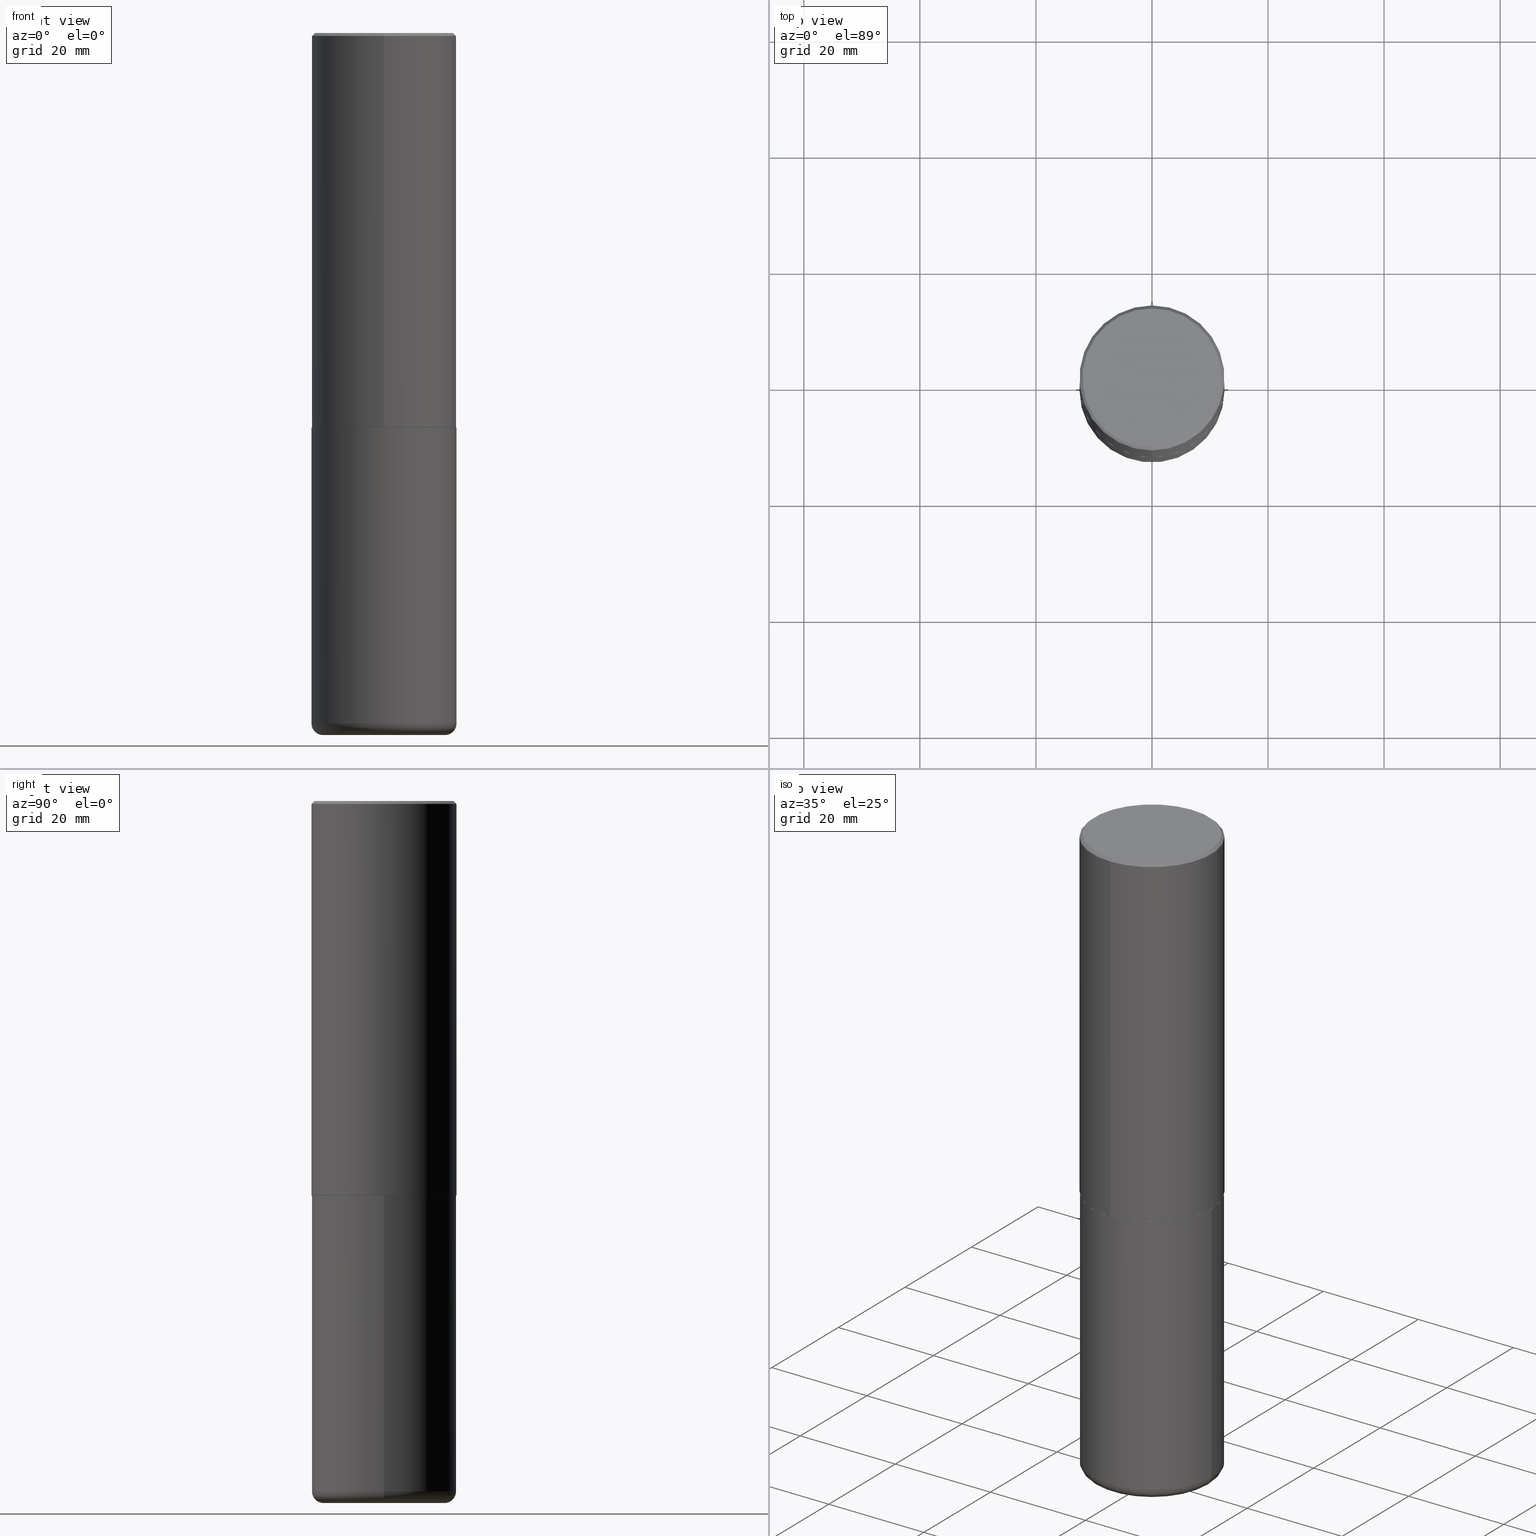
[diagram: canonical four-view strip — front | top / right | iso, engineering-drawing reading convention]
A machine part, canonical four-view strip (front | top / right | iso — engineering-drawing reading convention). The complete STEP part file that produces these views, byte-faithful:
ISO-10303-21;
HEADER;
FILE_DESCRIPTION (( 'STEP AP203' ),
    '1' );
FILE_NAME ('47147.STEP',
    '2024-03-05T23:48:38',
    ( '' ),
    ( '' ),
    'SwSTEP 2.0',
    'SolidWorks 2023',
    '' );
FILE_SCHEMA (( 'CONFIG_CONTROL_DESIGN' ));
ENDSEC;

DATA;
#1 = DIRECTION ( 'NONE',  ( 1.000000000000000000, -6.982962677686263555E-15, 4.883557194083111219E-29 ) ) ;
#2 = ORIENTED_EDGE ( 'NONE', *, *, #55, .T. ) ;
#3 = ORIENTED_EDGE ( 'NONE', *, *, #375, .F. ) ;
#4 = VECTOR ( 'NONE', #367, 39.37007874015748854 ) ;
#5 = CIRCLE ( 'NONE', #245, 0.4921499999999999209 ) ;
#6 = ADVANCED_FACE ( 'NONE', ( #133 ), #112, .F. ) ;
#7 = CARTESIAN_POINT ( 'NONE',  ( -5.508856381705404921E-45, 7.854569916190676353E-31, 2.251160947276086573E-16 ) ) ;
#8 = EDGE_CURVE ( 'NONE', #267, #324, #221, .T. ) ;
#9 = VERTEX_POINT ( 'NONE', #141 ) ;
#10 = APPROVAL_STATUS ( 'not_yet_approved' ) ;
#11 = ORIENTED_EDGE ( 'NONE', *, *, #8, .T. ) ;
#12 = ORIENTED_EDGE ( 'NONE', *, *, #219, .F. ) ;
#13 = EDGE_CURVE ( 'NONE', #9, #322, #332, .T. ) ;
#14 = VECTOR ( 'NONE', #186, 39.37007874015748143 ) ;
#15 = ORIENTED_EDGE ( 'NONE', *, *, #211, .F. ) ;
#16 = ADVANCED_FACE ( 'NONE', ( #176 ), #51, .T. ) ;
#17 = LOCAL_TIME ( 18, 48, 38.00000000000000000, #287 ) ;
#18 = DIRECTION ( 'NONE',  ( 1.000000000000000000, -6.982962677686265922E-15, 0.000000000000000000 ) ) ;
#19 = LINE ( 'NONE', #244, #4 ) ;
#20 = EDGE_CURVE ( 'NONE', #324, #267, #77, .T. ) ;
#21 = EDGE_CURVE ( 'NONE', #326, #320, #118, .T. ) ;
#22 = CARTESIAN_POINT ( 'NONE',  ( 4.894235917135264524E-31, -6.978239317535049922E-17, -0.02000000000000010797 ) ) ;
#23 = VECTOR ( 'NONE', #249, 39.37007874015748143 ) ;
#24 = AXIS2_PLACEMENT_3D ( 'NONE', #128, #163, #1 ) ;
#25 = DIRECTION ( 'NONE',  ( -2.447117958567619178E-29, 3.489119658767506053E-15, 1.000000000000000000 ) ) ;
#26 = DIRECTION ( 'NONE',  ( -2.447117958567619178E-29, 3.489119658767506053E-15, 1.000000000000000000 ) ) ;
#27 = DIRECTION ( 'NONE',  ( 2.447117958567619178E-29, -3.489119658767506053E-15, -1.000000000000000000 ) ) ;
#28 = VERTEX_POINT ( 'NONE', #212 ) ;
#29 = AXIS2_PLACEMENT_3D ( 'NONE', #124, #98, #253 ) ;
#30 = CARTESIAN_POINT ( 'NONE',  ( 6.548977080718662055E-29, -9.337582030793598206E-15, -2.676199999999999690 ) ) ;
#31 = DIRECTION ( 'NONE',  ( -6.982962677686266711E-15, -1.000000000000000000, 3.491481338843145583E-15 ) ) ;
#32 = PERSON ( 'UNSPECIFIED', 'UNSPECIFIED', 'UNSPECIFIED', ('UNSPECIFIED'), ('UNSPECIFIED'), ('UNSPECIFIED') ) ;
#33 = EDGE_CURVE ( 'NONE', #38, #322, #199, .T. ) ;
#34 = CARTESIAN_POINT ( 'NONE',  ( -3.429682119145543892E-15, -0.4911500000000093014, -2.677199999999997360 ) ) ;
#35 =( LENGTH_UNIT ( ) NAMED_UNIT ( * ) SI_UNIT ( $, .METRE. ) );
#36 = CC_DESIGN_SECURITY_CLASSIFICATION ( #250, ( #340 ) ) ;
#37 = MECHANICAL_CONTEXT ( 'NONE', #382, 'mechanical' ) ;
#38 = VERTEX_POINT ( 'NONE', #400 ) ;
#39 = EDGE_LOOP ( 'NONE', ( #12, #105, #198, #230 ) ) ;
#40 = DIRECTION ( 'NONE',  ( 1.000000000000000000, 0.000000000000000000, 0.000000000000000000 ) ) ;
#41 = ORIENTED_EDGE ( 'NONE', *, *, #20, .T. ) ;
#42 = PERSON_AND_ORGANIZATION_ROLE ( 'creator' ) ;
#43 = ORIENTED_EDGE ( 'NONE', *, *, #196, .T. ) ;
#44 = LOCAL_TIME ( 18, 48, 38.00000000000000000, #137 ) ;
#45 = VERTEX_POINT ( 'NONE', #140 ) ;
#46 = DATE_TIME_ROLE ( 'creation_date' ) ;
#47 = ORIENTED_EDGE ( 'NONE', *, *, #399, .F. ) ;
#48 = ORIENTED_EDGE ( 'NONE', *, *, #285, .T. ) ;
#49 = ORIENTED_EDGE ( 'NONE', *, *, #344, .T. ) ;
#50 = FACE_OUTER_BOUND ( 'NONE', #302, .T. ) ;
#51 = CONICAL_SURFACE ( 'NONE', #366, 0.4921499999999999209, 0.7853981633974466137 ) ;
#52 = CARTESIAN_POINT ( 'NONE',  ( -3.436665081823232273E-15, -0.4921500000000095798, -2.676199999999997914 ) ) ;
#53 = CC_DESIGN_PERSON_AND_ORGANIZATION_ASSIGNMENT ( #301, #208, ( #340 ) ) ;
#54 = LINE ( 'NONE', #119, #314 ) ;
#55 = EDGE_CURVE ( 'NONE', #28, #38, #19, .T. ) ;
#56 = DIRECTION ( 'NONE',  ( -6.982962677686265922E-15, -1.000000000000000000, 3.337287582609300506E-15 ) ) ;
#57 = VECTOR ( 'NONE', #25, 39.37007874015748143 ) ;
#58 = CARTESIAN_POINT ( 'NONE',  ( 1.164972429890475522E-28, -1.663271880198097847E-14, -4.763799999999999812 ) ) ;
#59 = CALENDAR_DATE ( 2024, 5, 3 ) ;
#60 = EDGE_CURVE ( 'NONE', #173, #322, #270, .T. ) ;
#61 = CARTESIAN_POINT ( 'NONE',  ( 6.551424198677229006E-29, -9.341071150452363547E-15, -2.677199999999999580 ) ) ;
#62 = DIRECTION ( 'NONE',  ( -1.000000000000000000, 7.105427357600995548E-15, 0.000000000000000000 ) ) ;
#63 = AXIS2_PLACEMENT_3D ( 'NONE', #58, #363, #125 ) ;
#64 = AXIS2_PLACEMENT_3D ( 'NONE', #7, #81, #317 ) ;
#65 = LINE ( 'NONE', #412, #92 ) ;
#66 = APPROVAL ( #108, 'UNSPECIFIED' ) ;
#67 = CARTESIAN_POINT ( 'NONE',  ( -0.4921500000000000874, -1.286100314657068829E-14, -4.685099999999999376 ) ) ;
#68 = DIRECTION ( 'NONE',  ( -2.445468806185136597E-29, 3.491481338843145583E-15, 1.000000000000000000 ) ) ;
#69 = SECURITY_CLASSIFICATION_LEVEL ( 'unclassified' ) ;
#70 = AXIS2_PLACEMENT_3D ( 'NONE', #309, #368, #209 ) ;
#71 = ORIENTED_EDGE ( 'NONE', *, *, #233, .F. ) ;
#72 = PRODUCT_DEFINITION ( 'UNKNOWN', '', #340, #129 ) ;
#73 = ORIENTED_EDGE ( 'NONE', *, *, #20, .F. ) ;
#74 = DATE_AND_TIME ( #353, #192 ) ;
#75 = ORIENTED_EDGE ( 'NONE', *, *, #211, .T. ) ;
#76 = ORIENTED_EDGE ( 'NONE', *, *, #196, .F. ) ;
#77 = CIRCLE ( 'NONE', #182, 0.4921499999999999764 ) ;
#78 = EDGE_LOOP ( 'NONE', ( #41, #201, #266, #251 ) ) ;
#79 = CIRCLE ( 'NONE', #153, 0.4721499999999996255 ) ;
#80 = CC_DESIGN_PERSON_AND_ORGANIZATION_ASSIGNMENT ( #136, #142, ( #250 ) ) ;
#81 = DIRECTION ( 'NONE',  ( -2.447117958567619178E-29, 3.489119658767506053E-15, 1.000000000000000000 ) ) ;
#82 = ORIENTED_EDGE ( 'NONE', *, *, #392, .F. ) ;
#83 = ORIENTED_EDGE ( 'NONE', *, *, #399, .T. ) ;
#84 = DIRECTION ( 'NONE',  ( -2.447117958567619178E-29, 3.489119658767506053E-15, 1.000000000000000000 ) ) ;
#85 = PERSON_AND_ORGANIZATION_ROLE ( 'design_supplier' ) ;
#86 = DIRECTION ( 'NONE',  ( -2.445468806185136597E-29, 3.491481338843145583E-15, 1.000000000000000000 ) ) ;
#87 = AXIS2_PLACEMENT_3D ( 'NONE', #167, #238, #203 ) ;
#88 = PLANE ( 'NONE',  #70 ) ;
#89 = CYLINDRICAL_SURFACE ( 'NONE', #191, 0.4921500000000000874 ) ;
#90 = PERSON_AND_ORGANIZATION ( #32, #319 ) ;
#91 = DIRECTION ( 'NONE',  ( -2.445468806185136597E-29, 3.491481338843145583E-15, 1.000000000000000000 ) ) ;
#92 = VECTOR ( 'NONE', #99, 39.37007874015748143 ) ;
#93 = LINE ( 'NONE', #312, #214 ) ;
#94 = SHAPE_DEFINITION_REPRESENTATION ( #202, #178 ) ;
#95 = PLANE ( 'NONE',  #183 ) ;
#96 = ORIENTED_EDGE ( 'NONE', *, *, #13, .T. ) ;
#97 = APPROVAL_DATE_TIME ( #158, #355 ) ;
#98 = DIRECTION ( 'NONE',  ( -2.447117958567619178E-29, 3.489119658767506053E-15, 1.000000000000000000 ) ) ;
#99 = DIRECTION ( 'NONE',  ( -2.447117958567619178E-29, 3.489119658767506053E-15, 1.000000000000000000 ) ) ;
#100 = FACE_OUTER_BOUND ( 'NONE', #39, .T. ) ;
#101 = DIRECTION ( 'NONE',  ( -6.982962677686265922E-15, -1.000000000000000000, 3.337287582609300506E-15 ) ) ;
#102 = ORIENTED_EDGE ( 'NONE', *, *, #392, .T. ) ;
#103 = TOROIDAL_SURFACE ( 'NONE', #333, 0.4134499999999999287, 0.07870000000000024198 ) ;
#104 = CC_DESIGN_APPROVAL ( #355, ( #340 ) ) ;
#105 = ORIENTED_EDGE ( 'NONE', *, *, #21, .T. ) ;
#106 = APPLICATION_PROTOCOL_DEFINITION ( 'international standard', 'config_control_design', 1994, #123 ) ;
#107 = ORIENTED_EDGE ( 'NONE', *, *, #285, .F. ) ;
#108 = APPROVAL_STATUS ( 'not_yet_approved' ) ;
#109 = EDGE_LOOP ( 'NONE', ( #331, #43, #193, #107 ) ) ;
#110 = APPROVAL_ROLE ( '' ) ;
#111 = AXIS2_PLACEMENT_3D ( 'NONE', #147, #84, #179 ) ;
#112 = PLANE ( 'NONE',  #87 ) ;
#113 = AXIS2_PLACEMENT_3D ( 'NONE', #316, #31, #157 ) ;
#114 = DIRECTION ( 'NONE',  ( 1.000000000000000000, -6.982962677686265922E-15, 4.876176775795935793E-29 ) ) ;
#115 = ADVANCED_FACE ( 'NONE', ( #116 ), #358, .T. ) ;
#116 = FACE_OUTER_BOUND ( 'NONE', #174, .T. ) ;
#117 = DIRECTION ( 'NONE',  ( -6.982962677686265922E-15, -1.000000000000000000, 3.337287582609300506E-15 ) ) ;
#118 = CIRCLE ( 'NONE', #325, 0.4134499999999999287 ) ;
#119 = CARTESIAN_POINT ( 'NONE',  ( 0.4921499999999999764, -3.436665081823295777E-15, 2.399810400207969603E-29 ) ) ;
#120 = CALENDAR_DATE ( 2024, 5, 3 ) ;
#121 = CARTESIAN_POINT ( 'NONE',  ( 6.551424198677227885E-29, -9.341071150452363547E-15, -2.677199999999999136 ) ) ;
#122 = DIRECTION ( 'NONE',  ( 7.105427357601001859E-15, 1.000000000000000000, -3.491481338843145583E-15 ) ) ;
#123 = APPLICATION_CONTEXT ( 'configuration controlled 3d designs of mechanical parts and assemblies' ) ;
#124 = CARTESIAN_POINT ( 'NONE',  ( 6.548977080718662055E-29, -9.337582030793598206E-15, -2.676199999999999690 ) ) ;
#125 = DIRECTION ( 'NONE',  ( 1.000000000000000000, -6.982962677686261977E-15, 0.000000000000000000 ) ) ;
#126 = CARTESIAN_POINT ( 'NONE',  ( 1.145726590385798145E-28, -1.635793922061402197E-14, -4.685099999999999376 ) ) ;
#127 = DIRECTION ( 'NONE',  ( -1.000000000000000000, 6.982962677686265922E-15, -4.876176775795935793E-29 ) ) ;
#128 = CARTESIAN_POINT ( 'NONE',  ( 1.145726590385798145E-28, -1.635793922061402197E-14, -4.685099999999999376 ) ) ;
#129 = DESIGN_CONTEXT ( 'detailed design', #123, 'design' ) ;
#130 = DIRECTION ( 'NONE',  ( -2.447117958567619178E-29, 3.489119658767506053E-15, 1.000000000000000000 ) ) ;
#131 = EDGE_LOOP ( 'NONE', ( #261, #76 ) ) ;
#132 = AXIS2_PLACEMENT_3D ( 'NONE', #275, #240, #207 ) ;
#133 = FACE_OUTER_BOUND ( 'NONE', #169, .T. ) ;
#134 = ADVANCED_FACE ( 'NONE', ( #336 ), #88, .T. ) ;
#135 = ORIENTED_EDGE ( 'NONE', *, *, #33, .T. ) ;
#136 = PERSON_AND_ORGANIZATION ( #32, #319 ) ;
#137 = COORDINATED_UNIVERSAL_TIME_OFFSET ( 5, 0, .BEHIND. ) ;
#138 = ORIENTED_EDGE ( 'NONE', *, *, #21, .F. ) ;
#139 = CONICAL_SURFACE ( 'NONE', #168, 0.4921499999999999209, 0.7853981633974466137 ) ;
#140 = CARTESIAN_POINT ( 'NONE',  ( 0.4921499999999999764, -1.278405892217416209E-14, -2.677199999999999580 ) ) ;
#141 = CARTESIAN_POINT ( 'NONE',  ( -3.307789109625541747E-15, -0.4721499999999996255, 1.872503941614685503E-15 ) ) ;
#142 = PERSON_AND_ORGANIZATION_ROLE ( 'classification_officer' ) ;
#143 = EDGE_CURVE ( 'NONE', #324, #45, #54, .T. ) ;
#144 = DIRECTION ( 'NONE',  ( -2.445468806185136877E-29, 3.491481338843145188E-15, 1.000000000000000000 ) ) ;
#145 = CARTESIAN_POINT ( 'NONE',  ( 4.894235917135264524E-31, -6.978239317535049922E-17, -0.02000000000000010797 ) ) ;
#146 = CC_DESIGN_PERSON_AND_ORGANIZATION_ASSIGNMENT ( #346, #85, ( #340 ) ) ;
#147 = CARTESIAN_POINT ( 'NONE',  ( 6.551424198677227885E-29, -9.341071150452363547E-15, -2.677199999999999136 ) ) ;
#148 = DIRECTION ( 'NONE',  ( 1.000000000000000000, -6.982962677686263555E-15, 4.883557194083111219E-29 ) ) ;
#149 = ADVANCED_FACE ( 'NONE', ( #278 ), #89, .T. ) ;
#150 = LINE ( 'NONE', #376, #14 ) ;
#151 = AXIS2_PLACEMENT_3D ( 'NONE', #145, #311, #341 ) ;
#152 = DATE_TIME_ROLE ( 'classification_date' ) ;
#153 = AXIS2_PLACEMENT_3D ( 'NONE', #291, #130, #166 ) ;
#154 = ADVANCED_FACE ( 'NONE', ( #50 ), #181, .T. ) ;
#155 = DIRECTION ( 'NONE',  ( 2.438088387897960049E-29, -3.491481338843145188E-15, -1.000000000000000000 ) ) ;
#156 = ADVANCED_FACE ( 'NONE', ( #310 ), #334, .T. ) ;
#157 = DIRECTION ( 'NONE',  ( 1.000000000000000000, -6.982962677686273810E-15, 0.000000000000000000 ) ) ;
#158 = DATE_AND_TIME ( #59, #17 ) ;
#159 = FACE_OUTER_BOUND ( 'NONE', #172, .T. ) ;
#160 = AXIS2_PLACEMENT_3D ( 'NONE', #61, #407, #315 ) ;
#161 = AXIS2_PLACEMENT_3D ( 'NONE', #194, #321, #40 ) ;
#162 =( CONVERSION_BASED_UNIT ( 'INCH', #385 ) LENGTH_UNIT ( ) NAMED_UNIT ( #307 ) );
#163 = DIRECTION ( 'NONE',  ( -2.445468806185136597E-29, 3.491481338843145583E-15, 1.000000000000000000 ) ) ;
#164 = ORIENTED_EDGE ( 'NONE', *, *, #233, .T. ) ;
#165 = CALENDAR_DATE ( 2024, 5, 3 ) ;
#166 = DIRECTION ( 'NONE',  ( -6.982962677686265922E-15, -1.000000000000000000, 3.489119658767506053E-15 ) ) ;
#167 = CARTESIAN_POINT ( 'NONE',  ( 3.297005828269567997E-15, 0.4721499999999996255, -1.534829799523272196E-15 ) ) ;
#168 = AXIS2_PLACEMENT_3D ( 'NONE', #217, #27, #342 ) ;
#169 = EDGE_LOOP ( 'NONE', ( #102, #83 ) ) ;
#170 = APPLICATION_PROTOCOL_DEFINITION ( 'international standard', 'config_control_design', 1994, #382 ) ;
#171 = ORIENTED_EDGE ( 'NONE', *, *, #219, .T. ) ;
#172 = EDGE_LOOP ( 'NONE', ( #235, #48, #195, #386 ) ) ;
#173 = VERTEX_POINT ( 'NONE', #52 ) ;
#174 = EDGE_LOOP ( 'NONE', ( #384, #204, #354, #259 ) ) ;
#175 = AXIS2_PLACEMENT_3D ( 'NONE', #405, #338, #56 ) ;
#176 = FACE_OUTER_BOUND ( 'NONE', #361, .T. ) ;
#177 = CIRCLE ( 'NONE', #417, 0.4911499999999999755 ) ;
#178 = ADVANCED_BREP_SHAPE_REPRESENTATION ( '47147', ( #409, #271, #161 ), #276 ) ;
#179 = DIRECTION ( 'NONE',  ( -6.982962677686265922E-15, -1.000000000000000000, 3.337287582609300506E-15 ) ) ;
#180 = DIRECTION ( 'NONE',  ( -4.851104656540954809E-15, -0.7071067811865486830, -0.7071067811865462405 ) ) ;
#181 = CYLINDRICAL_SURFACE ( 'NONE', #236, 0.4921499999999999764 ) ;
#182 = AXIS2_PLACEMENT_3D ( 'NONE', #306, #205, #18 ) ;
#183 = AXIS2_PLACEMENT_3D ( 'NONE', #345, #155, #127 ) ;
#184 = CARTESIAN_POINT ( 'NONE',  ( 1.164972429890475522E-28, -1.663271880198097847E-14, -4.763799999999999812 ) ) ;
#185 = CARTESIAN_POINT ( 'NONE',  ( 6.547009087918846705E-29, -9.347393840350866318E-15, -2.677199999999999580 ) ) ;
#186 = DIRECTION ( 'NONE',  ( -4.937700262167077130E-15, -0.7071067811869072850, 0.7071067811861877495 ) ) ;
#187 = APPROVAL ( #401, 'UNSPECIFIED' ) ;
#188 = CARTESIAN_POINT ( 'NONE',  ( -0.4134499999999999287, -1.327799150377576435E-14, -4.763799999999999812 ) ) ;
#189 = CARTESIAN_POINT ( 'NONE',  ( 3.496936074043367212E-15, 0.4921499999999909281, -2.676200000000001467 ) ) ;
#190 = CARTESIAN_POINT ( 'NONE',  ( 3.489830646685796970E-15, 0.4911499999999905941, -2.677200000000000468 ) ) ;
#191 = AXIS2_PLACEMENT_3D ( 'NONE', #248, #365, #402 ) ;
#192 = LOCAL_TIME ( 18, 48, 38.00000000000000000, #237 ) ;
#193 = ORIENTED_EDGE ( 'NONE', *, *, #268, .T. ) ;
#194 = CARTESIAN_POINT ( 'NONE',  ( 0.000000000000000000, 0.000000000000000000, 0.000000000000000000 ) ) ;
#195 = ORIENTED_EDGE ( 'NONE', *, *, #60, .T. ) ;
#196 = EDGE_CURVE ( 'NONE', #330, #359, #243, .T. ) ;
#197 = PRODUCT ( '47147', '47147', '', ( #37 ) ) ;
#198 = ORIENTED_EDGE ( 'NONE', *, *, #328, .T. ) ;
#199 = CIRCLE ( 'NONE', #151, 0.4921499999999999209 ) ;
#200 = PERSON_AND_ORGANIZATION ( #32, #319 ) ;
#201 = ORIENTED_EDGE ( 'NONE', *, *, #246, .T. ) ;
#202 = PRODUCT_DEFINITION_SHAPE ( 'NONE', 'NONE',  #72 ) ;
#203 = DIRECTION ( 'NONE',  ( 6.982962677686265922E-15, 1.000000000000000000, -3.489119658767506053E-15 ) ) ;
#204 = ORIENTED_EDGE ( 'NONE', *, *, #218, .T. ) ;
#205 = DIRECTION ( 'NONE',  ( -2.445468806185136597E-29, 3.491481338843145583E-15, 1.000000000000000000 ) ) ;
#206 = CIRCLE ( 'NONE', #29, 0.4921500000000002539 ) ;
#207 = DIRECTION ( 'NONE',  ( 1.000000000000000000, -6.982962677686265922E-15, 4.876176775795935793E-29 ) ) ;
#208 = PERSON_AND_ORGANIZATION_ROLE ( 'creator' ) ;
#209 = DIRECTION ( 'NONE',  ( -1.000000000000000000, 6.982962677686265922E-15, -4.876176775795935793E-29 ) ) ;
#210 = ADVANCED_FACE ( 'NONE', ( #369 ), #256, .T. ) ;
#211 = EDGE_CURVE ( 'NONE', #320, #326, #351, .T. ) ;
#212 = CARTESIAN_POINT ( 'NONE',  ( 3.366835455046432084E-15, 0.4721499999999996255, -1.422271752159468089E-15 ) ) ;
#213 = DIRECTION ( 'NONE',  ( -2.447117958567619178E-29, 3.489119658767506053E-15, 1.000000000000000000 ) ) ;
#214 = VECTOR ( 'NONE', #379, 39.37007874015748143 ) ;
#215 = LOCAL_TIME ( 18, 48, 38.00000000000000000, #337 ) ;
#216 = APPROVAL_DATE_TIME ( #370, #187 ) ;
#217 = CARTESIAN_POINT ( 'NONE',  ( 4.894235917135264524E-31, -6.978239317535049922E-17, -0.02000000000000010797 ) ) ;
#218 = EDGE_CURVE ( 'NONE', #330, #352, #254, .T. ) ;
#219 = EDGE_CURVE ( 'NONE', #326, #267, #339, .T. ) ;
#220 = CARTESIAN_POINT ( 'NONE',  ( -3.376394089603257868E-15, -0.4921499999999999764, -0.01999999999999839059 ) ) ;
#221 = CIRCLE ( 'NONE', #227, 0.4921499999999999764 ) ;
#222 = CARTESIAN_POINT ( 'NONE',  ( 6.547009087918846705E-29, -9.347393840350866318E-15, -2.677199999999999580 ) ) ;
#223 = ADVANCED_FACE ( 'NONE', ( #284 ), #313, .F. ) ;
#224 = DIRECTION ( 'NONE',  ( -2.447117958567619178E-29, 3.489119658767506053E-15, 1.000000000000000000 ) ) ;
#225 = DIRECTION ( 'NONE',  ( -6.982962677686265922E-15, -1.000000000000000000, 3.486624039460257331E-15 ) ) ;
#226 = DIRECTION ( 'NONE',  ( -2.445468806185136597E-29, 3.491481338843145583E-15, 1.000000000000000000 ) ) ;
#227 = AXIS2_PLACEMENT_3D ( 'NONE', #295, #226, #304 ) ;
#228 = CIRCLE ( 'NONE', #283, 0.4921499999999999764 ) ;
#229 =( NAMED_UNIT ( * ) SI_UNIT ( $, .STERADIAN. ) SOLID_ANGLE_UNIT ( ) );
#230 = ORIENTED_EDGE ( 'NONE', *, *, #8, .F. ) ;
#231 = APPROVAL_ROLE ( '' ) ;
#232 = ORIENTED_EDGE ( 'NONE', *, *, #60, .F. ) ;
#233 = EDGE_CURVE ( 'NONE', #390, #45, #282, .T. ) ;
#234 = CARTESIAN_POINT ( 'NONE',  ( 4.894235917135264524E-31, -6.978239317535049922E-17, -0.02000000000000010797 ) ) ;
#235 = ORIENTED_EDGE ( 'NONE', *, *, #288, .F. ) ;
#236 = AXIS2_PLACEMENT_3D ( 'NONE', #241, #86, #114 ) ;
#237 = COORDINATED_UNIVERSAL_TIME_OFFSET ( 5, 0, .BEHIND. ) ;
#238 = DIRECTION ( 'NONE',  ( 2.447117958567618897E-29, -3.489119658767506053E-15, -1.000000000000000000 ) ) ;
#239 = ORIENTED_EDGE ( 'NONE', *, *, #375, .T. ) ;
#240 = DIRECTION ( 'NONE',  ( -2.445468806185136597E-29, 3.491481338843145583E-15, 1.000000000000000000 ) ) ;
#241 = CARTESIAN_POINT ( 'NONE',  ( 0.000000000000000000, 0.000000000000000000, 0.000000000000000000 ) ) ;
#242 = APPROVAL_ROLE ( '' ) ;
#243 = CIRCLE ( 'NONE', #175, 0.4911499999999999755 ) ;
#244 = CARTESIAN_POINT ( 'NONE',  ( 3.436665081823295777E-15, 0.4921499999999998098, -0.02000000000000182188 ) ) ;
#245 = AXIS2_PLACEMENT_3D ( 'NONE', #234, #258, #225 ) ;
#246 = EDGE_CURVE ( 'NONE', #267, #390, #93, .T. ) ;
#247 = DIRECTION ( 'NONE',  ( 2.447117958567619178E-29, -3.489119658767506053E-15, -1.000000000000000000 ) ) ;
#248 = CARTESIAN_POINT ( 'NONE',  ( 0.000000000000000000, 0.000000000000000000, 0.000000000000000000 ) ) ;
#249 = DIRECTION ( 'NONE',  ( 5.024295867790635654E-15, 0.7071067811869121700, 0.7071067811861828645 ) ) ;
#250 = SECURITY_CLASSIFICATION ( '', '', #69 ) ;
#251 = ORIENTED_EDGE ( 'NONE', *, *, #143, .F. ) ;
#252 = CC_DESIGN_DATE_AND_TIME_ASSIGNMENT ( #277, #152, ( #250 ) ) ;
#253 = DIRECTION ( 'NONE',  ( -6.982962677686266711E-15, -1.000000000000000000, 3.330506545156064285E-15 ) ) ;
#254 = LINE ( 'NONE', #190, #23 ) ;
#255 = CARTESIAN_POINT ( 'NONE',  ( 3.493383360364598263E-15, 0.4911499999999905941, -2.677200000000000468 ) ) ;
#256 = CONICAL_SURFACE ( 'NONE', #111, 0.4911499999999999755, 0.7853981633979605359 ) ;
#257 = CARTESIAN_POINT ( 'NONE',  ( 0.000000000000000000, 0.000000000000000000, 0.000000000000000000 ) ) ;
#258 = DIRECTION ( 'NONE',  ( -2.447117958567619178E-29, 3.489119658767506053E-15, 1.000000000000000000 ) ) ;
#259 = ORIENTED_EDGE ( 'NONE', *, *, #268, .F. ) ;
#260 = ADVANCED_FACE ( 'NONE', ( #286 ), #139, .T. ) ;
#261 = ORIENTED_EDGE ( 'NONE', *, *, #413, .F. ) ;
#262 = CC_DESIGN_DATE_AND_TIME_ASSIGNMENT ( #394, #46, ( #72 ) ) ;
#263 = PERSON_AND_ORGANIZATION ( #32, #319 ) ;
#264 = EDGE_LOOP ( 'NONE', ( #362, #393, #3, #232 ) ) ;
#265 = FACE_OUTER_BOUND ( 'NONE', #350, .T. ) ;
#266 = ORIENTED_EDGE ( 'NONE', *, *, #344, .F. ) ;
#267 = VERTEX_POINT ( 'NONE', #67 ) ;
#268 = EDGE_CURVE ( 'NONE', #359, #173, #150, .T. ) ;
#269 = TOROIDAL_SURFACE ( 'NONE', #24, 0.4134499999999999287, 0.07870000000000024198 ) ;
#270 = LINE ( 'NONE', #398, #57 ) ;
#271 = MANIFOLD_SOLID_BREP ( 'Body-Move/Copy2[2]', #404 ) ;
#272 = DIRECTION ( 'NONE',  ( 1.000000000000000000, -6.982962677686261977E-15, 0.000000000000000000 ) ) ;
#273 = CARTESIAN_POINT ( 'NONE',  ( -3.376394089603257868E-15, -0.4921499999999999764, -0.01999999999999839059 ) ) ;
#274 = CC_DESIGN_APPROVAL ( #187, ( #250 ) ) ;
#275 = CARTESIAN_POINT ( 'NONE',  ( 0.000000000000000000, 0.000000000000000000, 0.000000000000000000 ) ) ;
#276 =( GEOMETRIC_REPRESENTATION_CONTEXT ( 3 ) GLOBAL_UNCERTAINTY_ASSIGNED_CONTEXT ( ( #408 ) ) GLOBAL_UNIT_ASSIGNED_CONTEXT ( ( #162, #349, #229 ) ) REPRESENTATION_CONTEXT ( 'NONE', 'WORKASPACE' ) );
#277 = DATE_AND_TIME ( #165, #44 ) ;
#278 = FACE_OUTER_BOUND ( 'NONE', #264, .T. ) ;
#279 = DIRECTION ( 'NONE',  ( -2.445468806185136597E-29, 3.491481338843145583E-15, 1.000000000000000000 ) ) ;
#280 = ORIENTED_EDGE ( 'NONE', *, *, #55, .F. ) ;
#281 = DIRECTION ( 'NONE',  ( -6.982962677686266711E-15, -1.000000000000000000, 3.330506545156064285E-15 ) ) ;
#282 = CIRCLE ( 'NONE', #396, 0.4921499999999999764 ) ;
#283 = AXIS2_PLACEMENT_3D ( 'NONE', #222, #289, #347 ) ;
#284 = FACE_OUTER_BOUND ( 'NONE', #131, .T. ) ;
#285 = EDGE_CURVE ( 'NONE', #352, #173, #387, .T. ) ;
#286 = FACE_OUTER_BOUND ( 'NONE', #293, .T. ) ;
#287 = COORDINATED_UNIVERSAL_TIME_OFFSET ( 5, 0, .BEHIND. ) ;
#288 = EDGE_CURVE ( 'NONE', #352, #38, #65, .T. ) ;
#289 = DIRECTION ( 'NONE',  ( -2.445468806185136597E-29, 3.491481338843145583E-15, 1.000000000000000000 ) ) ;
#290 = ADVANCED_FACE ( 'NONE', ( #100 ), #103, .T. ) ;
#291 = CARTESIAN_POINT ( 'NONE',  ( -5.508856381705404921E-45, 7.854569916190676353E-31, 2.251160947276086573E-16 ) ) ;
#292 = CARTESIAN_POINT ( 'NONE',  ( -0.4921499999999999764, -9.355730456439111248E-15, -2.677199999999999580 ) ) ;
#293 = EDGE_LOOP ( 'NONE', ( #298, #82, #2, #135 ) ) ;
#294 = ORIENTED_EDGE ( 'NONE', *, *, #328, .F. ) ;
#295 = CARTESIAN_POINT ( 'NONE',  ( 1.145726590385798145E-28, -1.635793922061402197E-14, -4.685099999999999376 ) ) ;
#296 = EDGE_CURVE ( 'NONE', #173, #352, #206, .T. ) ;
#297 = COORDINATED_UNIVERSAL_TIME_OFFSET ( 5, 0, .BEHIND. ) ;
#298 = ORIENTED_EDGE ( 'NONE', *, *, #13, .F. ) ;
#299 = PERSON_AND_ORGANIZATION ( #32, #319 ) ;
#300 = ORIENTED_EDGE ( 'NONE', *, *, #246, .F. ) ;
#301 = PERSON_AND_ORGANIZATION ( #32, #319 ) ;
#302 = EDGE_LOOP ( 'NONE', ( #300, #11, #357, #71 ) ) ;
#303 = APPROVAL_PERSON_ORGANIZATION ( #200, #66, #231 ) ;
#304 = DIRECTION ( 'NONE',  ( 1.000000000000000000, -6.982962677686265922E-15, 0.000000000000000000 ) ) ;
#305 = PRODUCT_RELATED_PRODUCT_CATEGORY ( 'detail', '', ( #197 ) ) ;
#306 = CARTESIAN_POINT ( 'NONE',  ( 1.145726590385798145E-28, -1.635793922061402197E-14, -4.685099999999999376 ) ) ;
#307 = DIMENSIONAL_EXPONENTS ( 1.000000000000000000, 0.000000000000000000, 0.000000000000000000, 0.000000000000000000, 0.000000000000000000, 0.000000000000000000, 0.000000000000000000 ) ;
#308 = ADVANCED_FACE ( 'NONE', ( #381 ), #95, .F. ) ;
#309 = CARTESIAN_POINT ( 'NONE',  ( 7.253733539357195705E-29, -2.292802777390881521E-14, -4.763799999999999812 ) ) ;
#310 = FACE_OUTER_BOUND ( 'NONE', #78, .T. ) ;
#311 = DIRECTION ( 'NONE',  ( -2.447117958567619178E-29, 3.489119658767506053E-15, 1.000000000000000000 ) ) ;
#312 = CARTESIAN_POINT ( 'NONE',  ( -0.4921499999999999764, 3.496936074043332897E-15, -2.420853904668951509E-29 ) ) ;
#313 = PLANE ( 'NONE',  #160 ) ;
#314 = VECTOR ( 'NONE', #144, 39.37007874015748143 ) ;
#315 = DIRECTION ( 'NONE',  ( -6.982962677686265922E-15, -1.000000000000000000, 3.489119658767506053E-15 ) ) ;
#316 = CARTESIAN_POINT ( 'NONE',  ( 0.4134499999999999287, -1.924504513970340634E-14, -4.685099999999999376 ) ) ;
#317 = DIRECTION ( 'NONE',  ( -6.982962677686265922E-15, -1.000000000000000000, 3.489119658767506053E-15 ) ) ;
#318 = AXIS2_PLACEMENT_3D ( 'NONE', #373, #122, #62 ) ;
#319 = ORGANIZATION ( 'UNSPECIFIED', 'UNSPECIFIED', '' ) ;
#320 = VERTEX_POINT ( 'NONE', #414 ) ;
#321 = DIRECTION ( 'NONE',  ( 0.000000000000000000, 0.000000000000000000, 1.000000000000000000 ) ) ;
#322 = VERTEX_POINT ( 'NONE', #220 ) ;
#323 = PERSON_AND_ORGANIZATION ( #32, #319 ) ;
#324 = VERTEX_POINT ( 'NONE', #343 ) ;
#325 = AXIS2_PLACEMENT_3D ( 'NONE', #184, #91, #272 ) ;
#326 = VERTEX_POINT ( 'NONE', #188 ) ;
#327 = CIRCLE ( 'NONE', #64, 0.4721499999999996255 ) ;
#328 = EDGE_CURVE ( 'NONE', #320, #324, #411, .T. ) ;
#329 = CALENDAR_DATE ( 2024, 5, 3 ) ;
#330 = VERTEX_POINT ( 'NONE', #255 ) ;
#331 = ORIENTED_EDGE ( 'NONE', *, *, #218, .F. ) ;
#332 = LINE ( 'NONE', #273, #378 ) ;
#333 = AXIS2_PLACEMENT_3D ( 'NONE', #126, #68, #148 ) ;
#334 = CYLINDRICAL_SURFACE ( 'NONE', #132, 0.4921499999999999764 ) ;
#335 = CC_DESIGN_PERSON_AND_ORGANIZATION_ASSIGNMENT ( #323, #42, ( #72 ) ) ;
#336 = FACE_OUTER_BOUND ( 'NONE', #374, .T. ) ;
#337 = COORDINATED_UNIVERSAL_TIME_OFFSET ( 5, 0, .BEHIND. ) ;
#338 = DIRECTION ( 'NONE',  ( -2.447117958567619178E-29, 3.489119658767506053E-15, 1.000000000000000000 ) ) ;
#339 = CIRCLE ( 'NONE', #318, 0.07870000000000024198 ) ;
#340 = PRODUCT_DEFINITION_FORMATION_WITH_SPECIFIED_SOURCE ( 'ANY', '', #197, .NOT_KNOWN. ) ;
#341 = DIRECTION ( 'NONE',  ( -6.982962677686265922E-15, -1.000000000000000000, 3.486624039460257331E-15 ) ) ;
#342 = DIRECTION ( 'NONE',  ( 6.982962677686265922E-15, 1.000000000000000000, -3.486624039460257331E-15 ) ) ;
#343 = CARTESIAN_POINT ( 'NONE',  ( 0.4921500000000000874, -1.979460430243731302E-14, -4.685099999999999376 ) ) ;
#344 = EDGE_CURVE ( 'NONE', #45, #390, #228, .T. ) ;
#345 = CARTESIAN_POINT ( 'NONE',  ( 6.547009087918846705E-29, -9.347393840350866318E-15, -2.677199999999999580 ) ) ;
#346 = PERSON_AND_ORGANIZATION ( #32, #319 ) ;
#347 = DIRECTION ( 'NONE',  ( 1.000000000000000000, -6.982962677686265922E-15, 0.000000000000000000 ) ) ;
#348 = DIRECTION ( 'NONE',  ( -6.982962677686265922E-15, -1.000000000000000000, 3.489119658767506053E-15 ) ) ;
#349 =( NAMED_UNIT ( * ) PLANE_ANGLE_UNIT ( ) SI_UNIT ( $, .RADIAN. ) );
#350 = EDGE_LOOP ( 'NONE', ( #75, #171, #73, #294 ) ) ;
#351 = CIRCLE ( 'NONE', #63, 0.4134499999999999287 ) ;
#352 = VERTEX_POINT ( 'NONE', #189 ) ;
#353 = CALENDAR_DATE ( 2024, 5, 3 ) ;
#354 = ORIENTED_EDGE ( 'NONE', *, *, #296, .F. ) ;
#355 = APPROVAL ( #10, 'UNSPECIFIED' ) ;
#356 = APPROVAL_DATE_TIME ( #74, #66 ) ;
#357 = ORIENTED_EDGE ( 'NONE', *, *, #143, .T. ) ;
#358 = CONICAL_SURFACE ( 'NONE', #415, 0.4911499999999999755, 0.7853981633979605359 ) ;
#359 = VERTEX_POINT ( 'NONE', #34 ) ;
#360 = AXIS2_PLACEMENT_3D ( 'NONE', #257, #224, #348 ) ;
#361 = EDGE_LOOP ( 'NONE', ( #47, #96, #239, #280 ) ) ;
#362 = ORIENTED_EDGE ( 'NONE', *, *, #296, .T. ) ;
#363 = DIRECTION ( 'NONE',  ( -2.445468806185136597E-29, 3.491481338843145583E-15, 1.000000000000000000 ) ) ;
#364 = ADVANCED_FACE ( 'NONE', ( #159 ), #416, .T. ) ;
#365 = DIRECTION ( 'NONE',  ( -2.447117958567619178E-29, 3.489119658767506053E-15, 1.000000000000000000 ) ) ;
#366 = AXIS2_PLACEMENT_3D ( 'NONE', #22, #247, #406 ) ;
#367 = DIRECTION ( 'NONE',  ( 4.937700262164538576E-15, 0.7071067811865437980, -0.7071067811865511255 ) ) ;
#368 = DIRECTION ( 'NONE',  ( 2.438088387897960049E-29, -3.491481338843145188E-15, -1.000000000000000000 ) ) ;
#369 = FACE_OUTER_BOUND ( 'NONE', #109, .T. ) ;
#370 = DATE_AND_TIME ( #120, #215 ) ;
#371 = LOCAL_TIME ( 18, 48, 38.00000000000000000, #297 ) ;
#372 = DIRECTION ( 'NONE',  ( 1.000000000000000000, -6.982962677686265922E-15, 0.000000000000000000 ) ) ;
#373 = CARTESIAN_POINT ( 'NONE',  ( -0.4134499999999999287, -1.342020027961388708E-14, -4.685099999999999376 ) ) ;
#374 = EDGE_LOOP ( 'NONE', ( #15, #138 ) ) ;
#375 = EDGE_CURVE ( 'NONE', #322, #38, #5, .T. ) ;
#376 = CARTESIAN_POINT ( 'NONE',  ( -3.429682119145543892E-15, -0.4911500000000093014, -2.677199999999997360 ) ) ;
#377 = ADVANCED_FACE ( 'NONE', ( #265 ), #269, .T. ) ;
#378 = VECTOR ( 'NONE', #180, 39.37007874015748854 ) ;
#379 = DIRECTION ( 'NONE',  ( -2.445468806185136877E-29, 3.491481338843145188E-15, 1.000000000000000000 ) ) ;
#380 = APPROVAL_PERSON_ORGANIZATION ( #90, #187, #242 ) ;
#381 = FACE_OUTER_BOUND ( 'NONE', #395, .T. ) ;
#382 = APPLICATION_CONTEXT ( 'configuration controlled 3d designs of mechanical parts and assemblies' ) ;
#383 = CARTESIAN_POINT ( 'NONE',  ( 6.551424198677227885E-29, -9.341071150452363547E-15, -2.677199999999999136 ) ) ;
#384 = ORIENTED_EDGE ( 'NONE', *, *, #413, .T. ) ;
#385 = LENGTH_MEASURE_WITH_UNIT ( LENGTH_MEASURE( 0.02539999999999999897 ), #35 );
#386 = ORIENTED_EDGE ( 'NONE', *, *, #33, .F. ) ;
#387 = CIRCLE ( 'NONE', #410, 0.4921500000000002539 ) ;
#388 = CC_DESIGN_APPROVAL ( #66, ( #72 ) ) ;
#389 = PERSON_AND_ORGANIZATION_ROLE ( 'design_owner' ) ;
#390 = VERTEX_POINT ( 'NONE', #292 ) ;
#391 = DIRECTION ( 'NONE',  ( -2.447117958567619178E-29, 3.489119658767506053E-15, 1.000000000000000000 ) ) ;
#392 = EDGE_CURVE ( 'NONE', #28, #9, #327, .T. ) ;
#393 = ORIENTED_EDGE ( 'NONE', *, *, #288, .T. ) ;
#394 = DATE_AND_TIME ( #329, #371 ) ;
#395 = EDGE_LOOP ( 'NONE', ( #49, #164 ) ) ;
#396 = AXIS2_PLACEMENT_3D ( 'NONE', #185, #279, #372 ) ;
#397 = APPROVAL_PERSON_ORGANIZATION ( #299, #355, #110 ) ;
#398 = CARTESIAN_POINT ( 'NONE',  ( -3.436665081823296565E-15, -0.4921500000000000874, 1.717170240062428491E-15 ) ) ;
#399 = EDGE_CURVE ( 'NONE', #9, #28, #79, .T. ) ;
#400 = CARTESIAN_POINT ( 'NONE',  ( 3.436665081823295777E-15, 0.4921499999999998098, -0.02000000000000182188 ) ) ;
#401 = APPROVAL_STATUS ( 'not_yet_approved' ) ;
#402 = DIRECTION ( 'NONE',  ( -6.982962677686265922E-15, -1.000000000000000000, 3.489119658767506053E-15 ) ) ;
#403 = CLOSED_SHELL ( 'NONE', ( #156, #377, #308, #154, #290, #134 ) ) ;
#404 = CLOSED_SHELL ( 'NONE', ( #115, #149, #16, #260, #364, #210, #223, #6 ) ) ;
#405 = CARTESIAN_POINT ( 'NONE',  ( 6.551424198677227885E-29, -9.341071150452363547E-15, -2.677199999999999136 ) ) ;
#406 = DIRECTION ( 'NONE',  ( 6.982962677686265922E-15, 1.000000000000000000, -3.486624039460257331E-15 ) ) ;
#407 = DIRECTION ( 'NONE',  ( -2.447117958567618897E-29, 3.489119658767506053E-15, 1.000000000000000000 ) ) ;
#408 = UNCERTAINTY_MEASURE_WITH_UNIT (LENGTH_MEASURE( 1.000000000000000082E-05 ), #162, 'distance_accuracy_value', 'NONE');
#409 = MANIFOLD_SOLID_BREP ( 'Body-Move/Copy2[1]', #403 ) ;
#410 = AXIS2_PLACEMENT_3D ( 'NONE', #30, #26, #281 ) ;
#411 = CIRCLE ( 'NONE', #113, 0.07870000000000024198 ) ;
#412 = CARTESIAN_POINT ( 'NONE',  ( 3.496936074043333291E-15, 0.4921500000000000874, -1.717170240062428491E-15 ) ) ;
#413 = EDGE_CURVE ( 'NONE', #359, #330, #177, .T. ) ;
#414 = CARTESIAN_POINT ( 'NONE',  ( 0.4134499999999999287, -1.951982472107036283E-14, -4.763799999999999812 ) ) ;
#415 = AXIS2_PLACEMENT_3D ( 'NONE', #121, #213, #117 ) ;
#416 = CYLINDRICAL_SURFACE ( 'NONE', #360, 0.4921500000000000874 ) ;
#417 = AXIS2_PLACEMENT_3D ( 'NONE', #383, #391, #101 ) ;
#418 = CC_DESIGN_PERSON_AND_ORGANIZATION_ASSIGNMENT ( #263, #389, ( #197 ) ) ;
ENDSEC;
END-ISO-10303-21;
